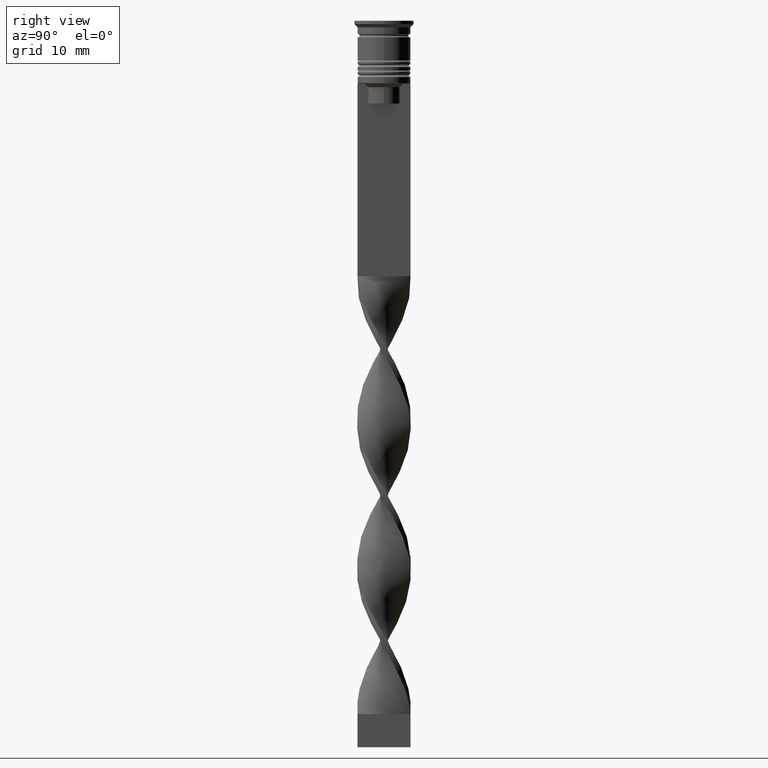
[diagram: clean part render]
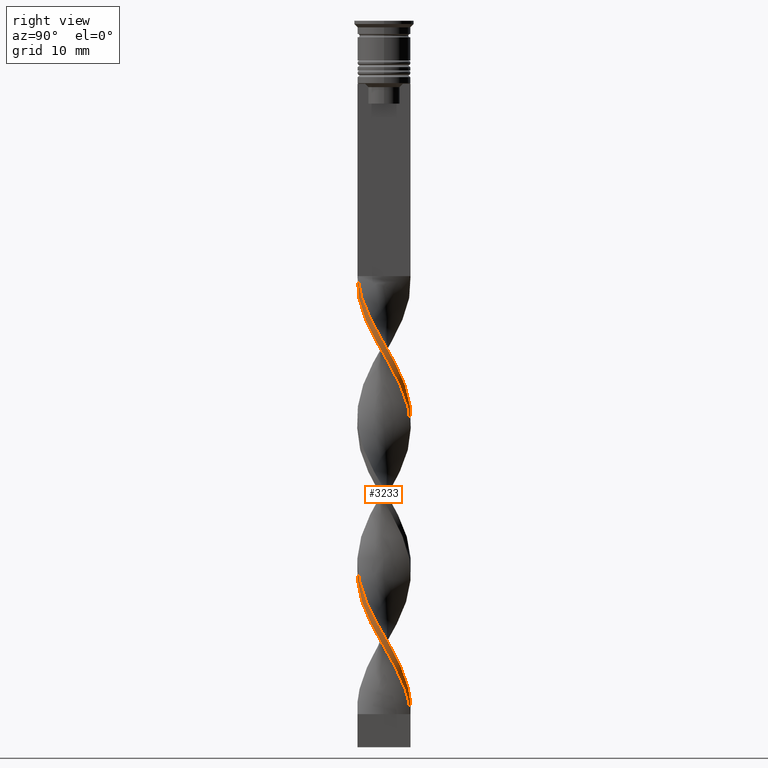
[diagram: same view with one face highlighted and labeled with its STEP entity id]
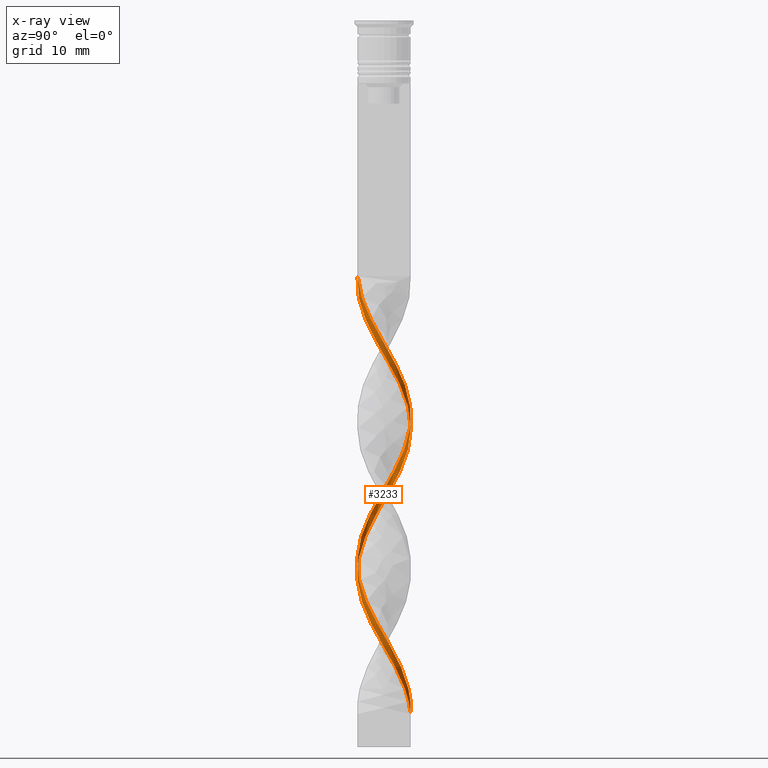
[diagram: x-ray of the same camera — body ghosted, the highlighted face saturated]
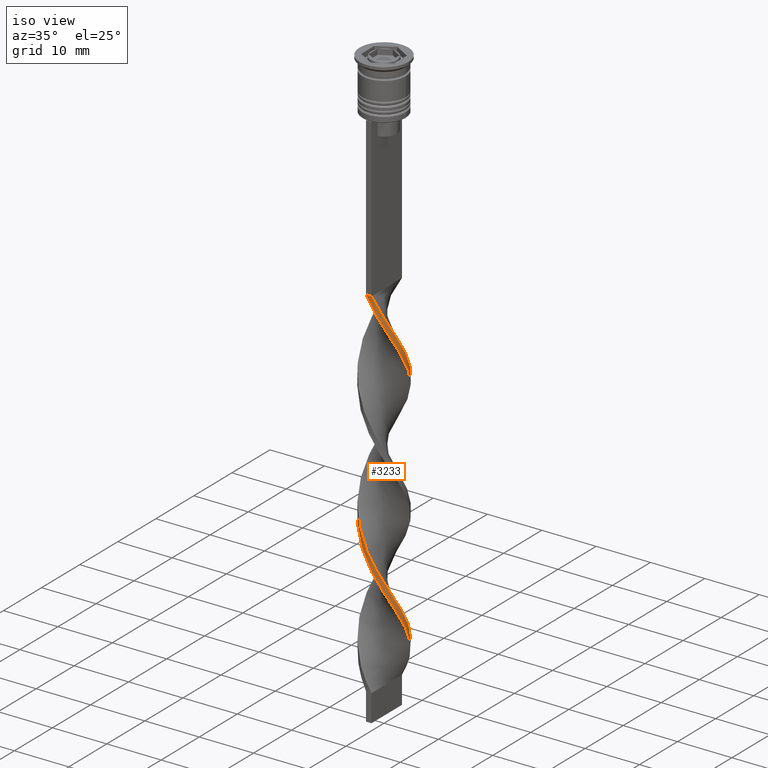
[diagram: same view with one face highlighted and labeled with its STEP entity id]
A machine part, right view. The second image highlights one B-rep face of the part: STEP entity #3233.
The next image is the same camera in x-ray: the body ghosted, the highlighted face saturated — about 0% of this face is hidden behind the body in this view.
A second angle (iso view) of the same face is appended — the face is thin or edge-on in the first view.
In plain terms, the highlighted face is a freeform B-spline surface patch.
Its self-contained STEP definition (entity closure, byte-faithful):
#4 = CARTESIAN_POINT ( 'NONE',  ( -0.9856879328890412184, 3.939289008388869640, -61.34615384615383249 ) ) ;
#8 = CARTESIAN_POINT ( 'NONE',  ( 3.333769449374405447, 2.318525361317902433, -52.88461538461537970 ) ) ;
#14 = CARTESIAN_POINT ( 'NONE',  ( -1.874433786711570127, 3.602232165184604540, -64.73076923076922640 ) ) ;
#22 = CARTESIAN_POINT ( 'NONE',  ( 1.899779198837471705, -3.588929866731989549, -85.03846153846153300 ) ) ;
#26 = CARTESIAN_POINT ( 'NONE',  ( 4.031103836519878136, 0.01420771602773408804, -48.65384615384615330 ) ) ;
#31 = CARTESIAN_POINT ( 'NONE',  ( 1.899779198837473038, 3.588929866731988660, -57.96153846153846700 ) ) ;
#45 = CARTESIAN_POINT ( 'NONE',  ( -3.007903090209048891, -2.683750919871450868, -75.73076923076924061 ) ) ;
#50 = CARTESIAN_POINT ( 'NONE',  ( 0.5000000000000000000, -4.000000000000000000, -82.50000000000000000 ) ) ;
#72 = CARTESIAN_POINT ( 'NONE',  ( 0.01431206711095556715, -4.060710991611130360, -81.65384615384616041 ) ) ;
#90 = CARTESIAN_POINT ( 'NONE',  ( 0.4717917484372050052, -4.003425101847986944, -40.19230769230769340 ) ) ;
#114 = CARTESIAN_POINT ( 'NONE',  ( 0.01431206711095876771, 4.060710991611130360, -61.34615384615383959 ) ) ;
#115 = ORIENTED_EDGE ( 'NONE', *, *, #3359, .F. ) ;
#133 = CARTESIAN_POINT ( 'NONE',  ( 0.9856879328890439940, 3.939289008388870084, -59.65384615384615330 ) ) ;
#139 = LINE ( 'NONE', #3141, #1529 ) ;
#141 = EDGE_LOOP ( 'NONE', ( #2055, #3278, #432, #115 ) ) ;
#149 = CARTESIAN_POINT ( 'NONE',  ( -2.301620701001681368, -3.309462516590953474, -79.11538461538461320 ) ) ;
#155 = CARTESIAN_POINT ( 'NONE',  ( -0.5000000000000000000, -4.000000000000000000, -38.50000000000000000 ) ) ;
#156 = CARTESIAN_POINT ( 'NONE',  ( -0.01431206711095789862, -4.060710991611130360, -39.34615384615384670 ) ) ;
#168 = CARTESIAN_POINT ( 'NONE',  ( -4.032828965577023972, -0.4752569063773701696, -73.19230769230770761 ) ) ;
#178 = CARTESIAN_POINT ( 'NONE',  ( 4.032828965577023084, 0.4752569063773717239, -51.19230769230768630 ) ) ;
#185 = CARTESIAN_POINT ( 'NONE',  ( 1.442733565863258516, 3.764109437560428262, -102.8076923076923208 ) ) ;
#213 = CARTESIAN_POINT ( 'NONE',  ( 3.562762527220391107, -1.885927669512850402, -90.96153846153845279 ) ) ;
#243 = CARTESIAN_POINT ( 'NONE',  ( -0.9856879328890445491, -3.939289008388869640, -81.65384615384616041 ) ) ;
#264 = CARTESIAN_POINT ( 'NONE',  ( -3.910567156264555422, -0.9785011580703162348, -72.34615384615383959 ) ) ;
#270 = CARTESIAN_POINT ( 'NONE',  ( -0.9578955639853692361, -3.946139212084844416, -79.96153846153846700 ) ) ;
#276 = CARTESIAN_POINT ( 'NONE',  ( 2.301620701001679148, 3.309462516590954806, -101.1153846153846132 ) ) ;
#284 = CARTESIAN_POINT ( 'NONE',  ( 3.333769449374405447, 2.318525361317902878, -52.88461538461538680 ) ) ;
#287 = CARTESIAN_POINT ( 'NONE',  ( 3.575967836940203703, -1.860767053977795404, -89.26923076923077360 ) ) ;
#292 = CARTESIAN_POINT ( 'NONE',  ( -2.301620701001681368, -3.309462516590953474, -79.11538461538461320 ) ) ;
#298 = CARTESIAN_POINT ( 'NONE',  ( 0.5000000000000000000, -4.000000000000000000, -82.50000000000000000 ) ) ;
#302 = CARTESIAN_POINT ( 'NONE',  ( -1.416164675348472235, -3.774185688634722702, -79.11538461538461320 ) ) ;
#307 = CARTESIAN_POINT ( 'NONE',  ( 3.917367414262927561, 0.9509114268274344584, -96.03846153846154721 ) ) ;
#315 = CARTESIAN_POINT ( 'NONE',  ( -1.442733565863255851, 3.764109437560429594, -62.19230769230769340 ) ) ;
#318 = CARTESIAN_POINT ( 'NONE',  ( 4.029378707462731413, 0.5036723384328412045, -49.50000000000000000 ) ) ;
#344 = CARTESIAN_POINT ( 'NONE',  ( 3.917367414262926673, -0.9509114268274357906, -46.96153846153845990 ) ) ;
#357 = CARTESIAN_POINT ( 'NONE',  ( 2.278235258877631342, 3.325604321804801256, -99.42307692307691980 ) ) ;
#362 = CARTESIAN_POINT ( 'NONE',  ( -3.026746007048732423, -2.662481663564005174, -77.42307692307693401 ) ) ;
#374 = CARTESIAN_POINT ( 'NONE',  ( 3.917367414262926673, -0.9509114268274357906, -90.96153846153845279 ) ) ;
#380 = CARTESIAN_POINT ( 'NONE',  ( 2.703462203165886368, 3.029995166449921840, -56.26923076923076650 ) ) ;
#402 = CARTESIAN_POINT ( 'NONE',  ( 1.899779198837473038, 3.588929866731988216, -57.96153846153846700 ) ) ;
#418 = CARTESIAN_POINT ( 'NONE',  ( -3.007903090209047559, 2.683750919871451757, -67.26923076923077360 ) ) ;
#432 = ORIENTED_EDGE ( 'NONE', *, *, #1738, .F. ) ;
#433 = CARTESIAN_POINT ( 'NONE',  ( -3.791755605066377655, 1.453329977707796816, -69.80769230769230660 ) ) ;
#442 = CARTESIAN_POINT ( 'NONE',  ( 3.910567156264554534, -0.9785011580703200096, -48.65384615384615330 ) ) ;
#478 = CARTESIAN_POINT ( 'NONE',  ( 3.575967836940204148, 1.860767053977794516, -53.73076923076923350 ) ) ;
#483 = CARTESIAN_POINT ( 'NONE',  ( -0.4999999999999994449, 4.000000000000000000, -104.5000000000000142 ) ) ;
#489 = CARTESIAN_POINT ( 'NONE',  ( 3.917367414262927561, 0.9509114268274344584, -52.03846153846154010 ) ) ;
#501 = CARTESIAN_POINT ( 'NONE',  ( 1.899779198837471705, -3.588929866731989105, -41.03846153846154010 ) ) ;
#510 = CARTESIAN_POINT ( 'NONE',  ( 3.801905862948830261, 1.426565947277498081, -96.88461538461538680 ) ) ;
#517 = CARTESIAN_POINT ( 'NONE',  ( 3.007903090209047559, -2.683750919871451757, -89.26923076923077360 ) ) ;
#528 = CARTESIAN_POINT ( 'NONE',  ( 0.9856879328890441050, 3.939289008388869640, -59.65384615384615330 ) ) ;
#533 = CARTESIAN_POINT ( 'NONE',  ( 3.791755605066377655, 1.453329977707796816, -51.19230769230768630 ) ) ;
#537 = CARTESIAN_POINT ( 'NONE',  ( -3.562762527220391551, -1.885927669512849514, -74.03846153846153300 ) ) ;
#541 = CARTESIAN_POINT ( 'NONE',  ( -0.01431206711095789862, -4.060710991611130360, -83.34615384615386802 ) ) ;
#547 = VERTEX_POINT ( 'NONE', #483 ) ;
#549 = CARTESIAN_POINT ( 'NONE',  ( -0.9578955639853693471, -3.946139212084843972, -79.96153846153846700 ) ) ;
#555 =( BOUNDED_CURVE ( )  B_SPLINE_CURVE ( 2, ( #2032, #3076, #3387, #1972, #1092, #2876, #1376, #1692, #573, #1714, #2546, #818, #3642, #609, #2013, #533, #2505, #284, #2232, #3352, #892, #2855, #851, #1415, #3092, #3369, #1433, #4, #315, #3621, #1131, #1452, #2819, #1954, #2580, #2250, #1147, #1676, #1393, #3148, #264, #2801, #2527, #1992, #45, #1113, #3129, #1729, #832, #549, #3111, #2837, #298, #2562, #874, #22, #2285, #3407, #591, #1173, #2309, #3429, #374, #940, #2327, #3493, #2383, #959, #2961, #2078, #3524, #1514, #357, #3191, #1845, #2939, #3510, #1477, #980 ),
 .UNSPECIFIED., .F., .T. ) 
 B_SPLINE_CURVE_WITH_KNOTS ( ( 3, 2, 2, 2, 2, 2, 2, 2, 2, 2, 2, 2, 2, 2, 2, 2, 2, 2, 2, 2, 2, 2, 2, 2, 2, 2, 2, 2, 2, 2, 2, 2, 2, 2, 2, 2, 2, 2, 2, 3 ),
 ( 0.000000000000000000, 0.01923076923076923184, 0.03846153846153846367, 0.05769230769230768857, 0.07692307692307692735, 0.09615384615384615918, 0.1153846153846153771, 0.1346153846153846090, 0.1538461538461538547, 0.1730769230769230449, 0.1923076923076923184, 0.2115384615384615363, 0.2307692307692307543, 0.2500000000000000000, 0.2692307692307692180, 0.2884615384615384359, 0.3076923076923077094, 0.3269230769230769273, 0.3461538461538460898, 0.3653846153846153633, 0.3846153846153846367, 0.4038461538461539102, 0.4230769230769230727, 0.4423076923076922906, 0.4615384615384615086, 0.4807692307692307820, 0.5000000000000000000, 0.5192307692307692735, 0.5384615384615384359, 0.5576923076923077094, 0.5769230769230768718, 0.5961538461538461453, 0.6153846153846154188, 0.6346153846153845812, 0.6538461538461538547, 0.6730769230769230171, 0.6923076923076921796, 0.7115384615384615641, 0.7307692307692307265, 0.7500000000000000000 ),
 .UNSPECIFIED. ) 
 CURVE ( )  GEOMETRIC_REPRESENTATION_ITEM ( )  RATIONAL_B_SPLINE_CURVE ( ( 1.000000000000000000, 0.9927088740980539727, 1.000000000000000000, 0.9927088740980539727, 1.000000000000000000, 0.9927088740980539727, 1.000000000000000000, 0.9927088740980539727, 1.000000000000000000, 0.9927088740980539727, 1.000000000000000000, 0.9927088740980539727, 1.000000000000000000, 0.9927088740980539727, 1.000000000000000000, 0.9927088740980539727, 1.000000000000000000, 0.9927088740980539727, 1.000000000000000000, 0.9927088740980539727, 1.000000000000000000, 0.9927088740980539727, 1.000000000000000000, 0.9927088740980539727, 1.000000000000000000, 0.9927088740980539727, 1.000000000000000000, 0.9927088740980539727, 1.000000000000000000, 0.9927088740980539727, 1.000000000000000000, 0.9927088740980539727, 1.000000000000000000, 0.9927088740980539727, 1.000000000000000000, 0.9927088740980539727, 1.000000000000000000, 0.9927088740980539727, 1.000000000000000000, 0.9927088740980539727, 1.000000000000000000, 0.9927088740980539727, 1.000000000000000000, 0.9927088740980539727, 1.000000000000000000, 0.9927088740980539727, 1.000000000000000000, 0.9927088740980539727, 1.000000000000000000, 0.9927088740980539727, 1.000000000000000000, 0.9927088740980539727, 1.000000000000000000, 0.9927088740980539727, 1.000000000000000000, 0.9927088740980539727, 1.000000000000000000, 0.9927088740980539727, 1.000000000000000000, 0.9927088740980539727, 1.000000000000000000, 0.9927088740980539727, 1.000000000000000000, 0.9927088740980539727, 1.000000000000000000, 0.9927088740980539727, 1.000000000000000000, 0.9927088740980539727, 1.000000000000000000, 0.9927088740980539727, 1.000000000000000000, 0.9927088740980539727, 1.000000000000000000, 0.9927088740980539727, 1.000000000000000000, 0.9927088740980539727, 1.000000000000000000, 0.9927088740980539727, 1.000000000000000000 ) ) 
 REPRESENTATION_ITEM ( '' )  );
#557 = CARTESIAN_POINT ( 'NONE',  ( 3.910567156264554534, 0.9785011580703186773, -50.34615384615384670 ) ) ;
#563 = CARTESIAN_POINT ( 'NONE',  ( -4.031103836519877248, 0.01420771602773772055, -72.34615384615383959 ) ) ;
#573 = CARTESIAN_POINT ( 'NONE',  ( 3.575967836940203703, -1.860767053977795404, -45.26923076923076650 ) ) ;
#579 = CARTESIAN_POINT ( 'NONE',  ( 2.278235258877631342, 3.325604321804801256, -55.42307692307691980 ) ) ;
#583 = CARTESIAN_POINT ( 'NONE',  ( 3.007903090209047559, -2.683750919871451757, -89.26923076923077360 ) ) ;
#591 = CARTESIAN_POINT ( 'NONE',  ( 3.026746007048731091, -2.662481663564006951, -87.57692307692308020 ) ) ;
#596 = CARTESIAN_POINT ( 'NONE',  ( 0.4717917484372064485, 4.003425101847986056, -58.80769230769231370 ) ) ;
#609 = CARTESIAN_POINT ( 'NONE',  ( 4.029378707462731413, 0.5036723384328412045, -49.50000000000000000 ) ) ;
#614 = CARTESIAN_POINT ( 'NONE',  ( 3.562762527220391551, 1.885927669512849070, -96.03846153846154721 ) ) ;
#640 = CARTESIAN_POINT ( 'NONE',  ( -3.575967836940204148, -1.860767053977794072, -75.73076923076924061 ) ) ;
#663 = CARTESIAN_POINT ( 'NONE',  ( -0.01431206711095789688, -4.060710991611130360, -83.34615384615386802 ) ) ;
#682 = CARTESIAN_POINT ( 'NONE',  ( -0.9578955639853662385, 3.946139212084844416, -63.03846153846153300 ) ) ;
#700 = CARTESIAN_POINT ( 'NONE',  ( 2.682036731043689670, -3.048976478425000636, -44.42307692307691980 ) ) ;
#716 = CARTESIAN_POINT ( 'NONE',  ( 3.910567156264554534, -0.9785011580703200096, -48.65384615384615330 ) ) ;
#725 = CARTESIAN_POINT ( 'NONE',  ( 3.333769449374404559, -2.318525361317903322, -46.11538461538462030 ) ) ;
#755 = CARTESIAN_POINT ( 'NONE',  ( 2.682036731043690114, -3.048976478425000636, -44.42307692307692690 ) ) ;
#776 = CARTESIAN_POINT ( 'NONE',  ( 3.350029810931577590, 2.294968160678091618, -98.57692307692310862 ) ) ;
#787 = CARTESIAN_POINT ( 'NONE',  ( 4.032828965577023084, 0.4752569063773717239, -95.19230769230769340 ) ) ;
#794 = CARTESIAN_POINT ( 'NONE',  ( 0.5000000000000005551, 4.000000000000000000, -104.5000000000000142 ) ) ;
#812 = CARTESIAN_POINT ( 'NONE',  ( 3.562762527220391107, -1.885927669512850402, -90.96153846153845279 ) ) ;
#815 = CARTESIAN_POINT ( 'NONE',  ( 0.5000000000000005551, 4.000000000000000000, -104.5000000000000142 ) ) ;
#818 = CARTESIAN_POINT ( 'NONE',  ( 4.032828965577023972, -0.4752569063773721680, -47.80769230769230660 ) ) ;
#821 = CARTESIAN_POINT ( 'NONE',  ( 1.442733565863256961, -3.764109437560429150, -84.19230769230769340 ) ) ;
#826 = CARTESIAN_POINT ( 'NONE',  ( 1.416164675348469126, -3.774185688634723590, -85.88461538461538680 ) ) ;
#832 = CARTESIAN_POINT ( 'NONE',  ( -1.416164675348472235, -3.774185688634722702, -79.11538461538461320 ) ) ;
#837 = CARTESIAN_POINT ( 'NONE',  ( -0.4999999999999994449, 4.000000000000000000, -60.50000000000000000 ) ) ;
#851 = CARTESIAN_POINT ( 'NONE',  ( 1.416164675348469792, 3.774185688634723146, -57.11538461538461320 ) ) ;
#857 = CARTESIAN_POINT ( 'NONE',  ( 0.9578955639853687920, 3.946139212084844416, -57.96153846153846700 ) ) ;
#864 = CARTESIAN_POINT ( 'NONE',  ( 1.442733565863258516, 3.764109437560428262, -58.80769230769231370 ) ) ;
#874 = CARTESIAN_POINT ( 'NONE',  ( 1.442733565863256961, -3.764109437560429150, -84.19230769230769340 ) ) ;
#881 = CARTESIAN_POINT ( 'NONE',  ( -1.874433786711571459, -3.602232165184603652, -78.26923076923075939 ) ) ;
#892 = CARTESIAN_POINT ( 'NONE',  ( 2.278235258877631342, 3.325604321804801256, -55.42307692307691980 ) ) ;
#898 = CARTESIAN_POINT ( 'NONE',  ( 3.791755605066377655, 1.453329977707796816, -95.19230769230769340 ) ) ;
#919 = CARTESIAN_POINT ( 'NONE',  ( -3.333769449374404559, 2.318525361317904654, -68.11538461538462741 ) ) ;
#927 = CARTESIAN_POINT ( 'NONE',  ( -0.4999999999999994449, 4.000000000000000000, -104.5000000000000142 ) ) ;
#940 = CARTESIAN_POINT ( 'NONE',  ( 4.032828965577023972, -0.4752569063773721680, -91.80769230769230660 ) ) ;
#945 = CARTESIAN_POINT ( 'NONE',  ( -3.350029810931578478, -2.294968160678088953, -76.57692307692306599 ) ) ;
#959 = CARTESIAN_POINT ( 'NONE',  ( 3.791755605066377655, 1.453329977707796816, -95.19230769230769340 ) ) ;
#966 = CARTESIAN_POINT ( 'NONE',  ( 4.032828965577023084, 0.4752569063773717239, -51.19230769230768630 ) ) ;
#980 = CARTESIAN_POINT ( 'NONE',  ( -0.4999999999999994449, 4.000000000000000000, -104.5000000000000142 ) ) ;
#983 = CARTESIAN_POINT ( 'NONE',  ( -3.917367414262927561, -0.9509114268274349024, -74.03846153846153300 ) ) ;
#1001 = CARTESIAN_POINT ( 'NONE',  ( -0.5000000000000000000, -4.000000000000000000, -82.50000000000000000 ) ) ;
#1011 = CARTESIAN_POINT ( 'NONE',  ( 3.007903090209047559, -2.683750919871451757, -45.26923076923076650 ) ) ;
#1052 = CARTESIAN_POINT ( 'NONE',  ( 3.026746007048731091, -2.662481663564006951, -43.57692307692307310 ) ) ;
#1088 = CARTESIAN_POINT ( 'NONE',  ( 3.350029810931577590, 2.294968160678091174, -98.57692307692310862 ) ) ;
#1092 = CARTESIAN_POINT ( 'NONE',  ( 2.301620701001678704, -3.309462516590955250, -41.88461538461537970 ) ) ;
#1107 = CARTESIAN_POINT ( 'NONE',  ( -0.5000000000000000000, -4.000000000000000000, -82.50000000000000000 ) ) ;
#1113 = CARTESIAN_POINT ( 'NONE',  ( -2.682036731043692779, -3.048976478424997527, -76.57692307692306599 ) ) ;
#1119 = CARTESIAN_POINT ( 'NONE',  ( -4.032828965577023084, 0.4752569063773718350, -69.80769230769230660 ) ) ;
#1125 = CARTESIAN_POINT ( 'NONE',  ( 3.026746007048731979, 2.662481663564005618, -99.42307692307691980 ) ) ;
#1131 = CARTESIAN_POINT ( 'NONE',  ( -2.301620701001678704, 3.309462516590955250, -63.88461538461538680 ) ) ;
#1134 = CARTESIAN_POINT ( 'NONE',  ( -1.899779198837470373, 3.588929866731989549, -63.03846153846153300 ) ) ;
#1139 = CARTESIAN_POINT ( 'NONE',  ( 0.9578955639853675708, -3.946139212084843972, -85.03846153846153300 ) ) ;
#1147 = CARTESIAN_POINT ( 'NONE',  ( -3.917367414262926673, 0.9509114268274362347, -68.96153846153846700 ) ) ;
#1154 = CARTESIAN_POINT ( 'NONE',  ( -2.278235258877631786, -3.325604321804800811, -77.42307692307693401 ) ) ;
#1161 = CARTESIAN_POINT ( 'NONE',  ( -4.032828965577023972, -0.4752569063773701696, -73.19230769230769340 ) ) ;
#1162 = VERTEX_POINT ( 'NONE', #815 ) ;
#1173 = CARTESIAN_POINT ( 'NONE',  ( 3.350029810931576701, -2.294968160678092506, -88.42307692307691980 ) ) ;
#1178 = CARTESIAN_POINT ( 'NONE',  ( 3.350029810931576701, -2.294968160678092506, -88.42307692307693401 ) ) ;
#1196 = CARTESIAN_POINT ( 'NONE',  ( -3.333769449374406335, -2.318525361317901101, -74.88461538461538680 ) ) ;
#1215 = CARTESIAN_POINT ( 'NONE',  ( -2.703462203165886812, -3.029995166449921840, -78.26923076923075939 ) ) ;
#1239 = CARTESIAN_POINT ( 'NONE',  ( -1.874433786711570127, 3.602232165184604540, -64.73076923076921219 ) ) ;
#1256 = CARTESIAN_POINT ( 'NONE',  ( -4.031103836519877248, 0.01420771602773772055, -72.34615384615383959 ) ) ;
#1274 = CARTESIAN_POINT ( 'NONE',  ( -0.9856879328890444381, -3.939289008388870084, -81.65384615384616041 ) ) ;
#1295 = CARTESIAN_POINT ( 'NONE',  ( 3.562762527220391107, -1.885927669512850402, -46.96153846153845990 ) ) ;
#1326 = FACE_OUTER_BOUND ( 'NONE', #141, .T. ) ;
#1369 = CARTESIAN_POINT ( 'NONE',  ( 0.01431206711095876771, 4.060710991611130360, -61.34615384615383249 ) ) ;
#1376 = CARTESIAN_POINT ( 'NONE',  ( 3.026746007048731091, -2.662481663564006951, -43.57692307692307310 ) ) ;
#1382 = CARTESIAN_POINT ( 'NONE',  ( 2.301620701001678704, -3.309462516590955250, -41.88461538461537970 ) ) ;
#1387 = CARTESIAN_POINT ( 'NONE',  ( -4.029378707462731413, 0.5036723384328422037, -71.50000000000001421 ) ) ;
#1393 = CARTESIAN_POINT ( 'NONE',  ( -4.031103836519878136, -0.01420771602773273322, -70.65384615384614619 ) ) ;
#1402 = CARTESIAN_POINT ( 'NONE',  ( 2.703462203165886368, -3.029995166449922284, -86.73076923076922640 ) ) ;
#1415 = CARTESIAN_POINT ( 'NONE',  ( 0.9578955639853689030, 3.946139212084843972, -57.96153846153846700 ) ) ;
#1420 = CARTESIAN_POINT ( 'NONE',  ( -3.791755605066378987, -1.453329977707795484, -73.19230769230770761 ) ) ;
#1425 = CARTESIAN_POINT ( 'NONE',  ( 0.4717917484372050052, -4.003425101847986944, -84.19230769230769340 ) ) ;
#1433 = CARTESIAN_POINT ( 'NONE',  ( -0.4999999999999994449, 4.000000000000000000, -60.50000000000000000 ) ) ;
#1437 = CARTESIAN_POINT ( 'NONE',  ( 1.899779198837471705, -3.588929866731989105, -85.03846153846153300 ) ) ;
#1443 = CARTESIAN_POINT ( 'NONE',  ( -0.9578955639853662385, 3.946139212084843972, -63.03846153846154010 ) ) ;
#1452 = CARTESIAN_POINT ( 'NONE',  ( -2.703462203165885924, 3.029995166449922728, -64.73076923076922640 ) ) ;
#1459 = CARTESIAN_POINT ( 'NONE',  ( -0.9856879328890411074, 3.939289008388870084, -61.34615384615383959 ) ) ;
#1477 = CARTESIAN_POINT ( 'NONE',  ( -0.01431206711095605461, 4.060710991611130360, -103.6538461538461462 ) ) ;
#1480 = CARTESIAN_POINT ( 'NONE',  ( -4.031103836519878136, -0.01420771602773273322, -70.65384615384614619 ) ) ;
#1486 = CARTESIAN_POINT ( 'NONE',  ( -0.1666666666666661578, 4.000000000000000000, -104.5000000000000142 ) ) ;
#1500 = CARTESIAN_POINT ( 'NONE',  ( 1.874433786711570571, -3.602232165184604096, -42.73076923076923350 ) ) ;
#1514 = CARTESIAN_POINT ( 'NONE',  ( 2.682036731043691002, 3.048976478424999303, -98.57692307692310862 ) ) ;
#1520 = CARTESIAN_POINT ( 'NONE',  ( 2.278235258877630010, -3.325604321804802588, -43.57692307692307310 ) ) ;
#1529 = VECTOR ( 'NONE', #2955, 1000.000000000000000 ) ;
#1530 = CARTESIAN_POINT ( 'NONE',  ( 0.5000000000000000000, -4.000000000000000000, -38.50000000000000000 ) ) ;
#1548 = CARTESIAN_POINT ( 'NONE',  ( 1.416164675348469792, 3.774185688634723146, -101.1153846153846132 ) ) ;
#1561 = CARTESIAN_POINT ( 'NONE',  ( -3.562762527220391107, 1.885927669512850846, -68.96153846153846700 ) ) ;
#1569 = EDGE_CURVE ( 'NONE', #2561, #1162, #2981, .T. ) ;
#1570 = CARTESIAN_POINT ( 'NONE',  ( 0.9578955639853675708, -3.946139212084843972, -41.03846153846154010 ) ) ;
#1574 = CARTESIAN_POINT ( 'NONE',  ( -0.01431206711095605461, 4.060710991611130360, -103.6538461538461604 ) ) ;
#1582 = CARTESIAN_POINT ( 'NONE',  ( 4.031103836519878136, -0.01420771602773549663, -50.34615384615384670 ) ) ;
#1594 = CARTESIAN_POINT ( 'NONE',  ( 3.910567156264554534, -0.9785011580703200096, -92.65384615384616041 ) ) ;
#1630 = CARTESIAN_POINT ( 'NONE',  ( 3.350029810931577590, 2.294968160678091174, -54.57692307692308731 ) ) ;
#1651 = CARTESIAN_POINT ( 'NONE',  ( -1.442733565863260736, -3.764109437560427818, -80.80769230769230660 ) ) ;
#1652 = EDGE_CURVE ( 'NONE', #1787, #2561, #139, .T. ) ;
#1659 = CARTESIAN_POINT ( 'NONE',  ( 4.032828965577023084, 0.4752569063773717239, -95.19230769230769340 ) ) ;
#1669 = CARTESIAN_POINT ( 'NONE',  ( 0.9856879328890441050, 3.939289008388869640, -103.6538461538461462 ) ) ;
#1676 = CARTESIAN_POINT ( 'NONE',  ( -4.032828965577023084, 0.4752569063773718350, -69.80769230769230660 ) ) ;
#1681 = CARTESIAN_POINT ( 'NONE',  ( 3.007903090209048003, 2.683750919871450868, -53.73076923076923350 ) ) ;
#1685 = CARTESIAN_POINT ( 'NONE',  ( -3.007903090209047559, 2.683750919871451757, -67.26923076923077360 ) ) ;
#1692 = CARTESIAN_POINT ( 'NONE',  ( 3.350029810931576701, -2.294968160678092506, -44.42307692307692690 ) ) ;
#1700 = CARTESIAN_POINT ( 'NONE',  ( -0.4717917484372087800, -4.003425101847986056, -80.80769230769230660 ) ) ;
#1705 = CARTESIAN_POINT ( 'NONE',  ( -2.703462203165886812, -3.029995166449921840, -78.26923076923077360 ) ) ;
#1714 = CARTESIAN_POINT ( 'NONE',  ( 3.801905862948830706, -1.426565947277498525, -46.11538461538462030 ) ) ;
#1718 = CARTESIAN_POINT ( 'NONE',  ( -3.350029810931575813, 2.294968160678093394, -66.42307692307694822 ) ) ;
#1723 = CARTESIAN_POINT ( 'NONE',  ( 4.031103836519878136, -0.01420771602773549663, -94.34615384615385381 ) ) ;
#1729 = CARTESIAN_POINT ( 'NONE',  ( -1.874433786711571237, -3.602232165184603652, -78.26923076923077360 ) ) ;
#1735 = CARTESIAN_POINT ( 'NONE',  ( 4.029378707462731413, 0.5036723384328412045, -93.49999999999998579 ) ) ;
#1738 = EDGE_CURVE ( 'NONE', #547, #1162, #2817, .T. ) ;
#1755 = CARTESIAN_POINT ( 'NONE',  ( 3.007903090209048003, 2.683750919871450868, -97.73076923076922640 ) ) ;
#1777 = CARTESIAN_POINT ( 'NONE',  ( 3.917367414262927561, 0.9509114268274344584, -52.03846153846154010 ) ) ;
#1787 = VERTEX_POINT ( 'NONE', #1530 ) ;
#1795 = CARTESIAN_POINT ( 'NONE',  ( 0.9578955639853675708, -3.946139212084844416, -85.03846153846153300 ) ) ;
#1812 = CARTESIAN_POINT ( 'NONE',  ( 0.4717917484372064485, 4.003425101847986056, -102.8076923076923208 ) ) ;
#1835 = CARTESIAN_POINT ( 'NONE',  ( 0.9578955639853687920, 3.946139212084844416, -101.9615384615384670 ) ) ;
#1845 = CARTESIAN_POINT ( 'NONE',  ( 1.416164675348469792, 3.774185688634723146, -101.1153846153846132 ) ) ;
#1848 = CARTESIAN_POINT ( 'NONE',  ( -3.910567156264554534, 0.9785011580703212308, -70.65384615384614619 ) ) ;
#1857 = CARTESIAN_POINT ( 'NONE',  ( 3.562762527220391107, -1.885927669512850402, -46.96153846153845990 ) ) ;
#1866 = CARTESIAN_POINT ( 'NONE',  ( 3.917367414262927561, 0.9509114268274344584, -96.03846153846154721 ) ) ;
#1884 = CARTESIAN_POINT ( 'NONE',  ( 1.874433786711570571, -3.602232165184604096, -86.73076923076922640 ) ) ;
#1899 = CARTESIAN_POINT ( 'NONE',  ( 2.682036731043689670, -3.048976478425000636, -88.42307692307693401 ) ) ;
#1904 = CARTESIAN_POINT ( 'NONE',  ( 4.029378707462731413, -0.5036723384328416486, -49.50000000000000000 ) ) ;
#1924 = CARTESIAN_POINT ( 'NONE',  ( -3.562762527220391107, 1.885927669512850846, -68.96153846153846700 ) ) ;
#1935 = CARTESIAN_POINT ( 'NONE',  ( 4.029378707462731413, -0.5036723384328416486, -93.49999999999998579 ) ) ;
#1941 = CARTESIAN_POINT ( 'NONE',  ( 0.5000000000000000000, -4.000000000000000000, -38.50000000000000000 ) ) ;
#1948 = CARTESIAN_POINT ( 'NONE',  ( 2.703462203165886368, 3.029995166449921840, -100.2692307692307878 ) ) ;
#1954 = CARTESIAN_POINT ( 'NONE',  ( -3.350029810931575813, 2.294968160678093394, -66.42307692307693401 ) ) ;
#1960 = CARTESIAN_POINT ( 'NONE',  ( -2.301620701001678704, 3.309462516590955250, -63.88461538461538680 ) ) ;
#1965 = CARTESIAN_POINT ( 'NONE',  ( 3.333769449374404559, -2.318525361317903322, -90.11538461538462741 ) ) ;
#1972 = CARTESIAN_POINT ( 'NONE',  ( 1.899779198837471705, -3.588929866731989549, -41.03846153846154010 ) ) ;
#1977 = CARTESIAN_POINT ( 'NONE',  ( 2.682036731043690558, 3.048976478424999303, -54.57692307692308731 ) ) ;
#1992 = CARTESIAN_POINT ( 'NONE',  ( -3.333769449374406335, -2.318525361317901101, -74.88461538461538680 ) ) ;
#1998 = CARTESIAN_POINT ( 'NONE',  ( 4.032828965577023972, -0.4752569063773721680, -47.80769230769230660 ) ) ;
#2003 = CARTESIAN_POINT ( 'NONE',  ( 3.026746007048731979, 2.662481663564005618, -55.42307692307691980 ) ) ;
#2013 = CARTESIAN_POINT ( 'NONE',  ( 3.910567156264554534, 0.9785011580703186773, -50.34615384615384670 ) ) ;
#2020 = CARTESIAN_POINT ( 'NONE',  ( 3.791755605066377655, 1.453329977707796816, -51.19230769230768630 ) ) ;
#2032 = CARTESIAN_POINT ( 'NONE',  ( 0.5000000000000000000, -4.000000000000000000, -38.50000000000000000 ) ) ;
#2038 = CARTESIAN_POINT ( 'NONE',  ( 3.333769449374405447, 2.318525361317902433, -96.88461538461538680 ) ) ;
#2055 = ORIENTED_EDGE ( 'NONE', *, *, #1652, .T. ) ;
#2057 = CARTESIAN_POINT ( 'NONE',  ( 0.9578955639853675708, -3.946139212084844416, -41.03846153846154010 ) ) ;
#2078 = CARTESIAN_POINT ( 'NONE',  ( 3.333769449374405447, 2.318525361317902878, -96.88461538461538680 ) ) ;
#2081 = CARTESIAN_POINT ( 'NONE',  ( -1.899779198837473482, -3.588929866731988216, -79.96153846153846700 ) ) ;
#2086 = CARTESIAN_POINT ( 'NONE',  ( 0.5000000000000005551, 4.000000000000000000, -104.5000000000000142 ) ) ;
#2100 = CARTESIAN_POINT ( 'NONE',  ( 3.350029810931577590, 2.294968160678091618, -54.57692307692308731 ) ) ;
#2117 = CARTESIAN_POINT ( 'NONE',  ( 1.874433786711571015, 3.602232165184603652, -100.2692307692307878 ) ) ;
#2135 = CARTESIAN_POINT ( 'NONE',  ( 0.4717917484372050052, -4.003425101847986944, -84.19230769230769340 ) ) ;
#2149 = CARTESIAN_POINT ( 'NONE',  ( 3.801905862948830261, 1.426565947277498081, -96.88461538461538680 ) ) ;
#2173 = CARTESIAN_POINT ( 'NONE',  ( -0.5000000000000000000, -4.000000000000000000, -38.50000000000000000 ) ) ;
#2186 = CARTESIAN_POINT ( 'NONE',  ( 3.350029810931576701, -2.294968160678092506, -44.42307692307691980 ) ) ;
#2189 = CARTESIAN_POINT ( 'NONE',  ( 1.416164675348469126, -3.774185688634723590, -41.88461538461537970 ) ) ;
#2195 = CARTESIAN_POINT ( 'NONE',  ( 2.278235258877630010, -3.325604321804802588, -87.57692307692308020 ) ) ;
#2210 = CARTESIAN_POINT ( 'NONE',  ( 3.026746007048731979, 2.662481663564005618, -99.42307692307691980 ) ) ;
#2222 = CARTESIAN_POINT ( 'NONE',  ( -1.416164675348468904, 3.774185688634723590, -63.88461538461538680 ) ) ;
#2232 = CARTESIAN_POINT ( 'NONE',  ( 3.007903090209048003, 2.683750919871450868, -53.73076923076923350 ) ) ;
#2243 = CARTESIAN_POINT ( 'NONE',  ( -2.682036731043689226, 3.048976478425001524, -66.42307692307693401 ) ) ;
#2250 = CARTESIAN_POINT ( 'NONE',  ( -3.801905862948829373, 1.426565947277500745, -68.11538461538461320 ) ) ;
#2255 = CARTESIAN_POINT ( 'NONE',  ( -4.029378707462731413, -0.5036723384328406494, -71.50000000000000000 ) ) ;
#2260 = CARTESIAN_POINT ( 'NONE',  ( 4.029378707462731413, -0.5036723384328416486, -93.50000000000000000 ) ) ;
#2269 = CARTESIAN_POINT ( 'NONE',  ( -2.682036731043692335, -3.048976478424997527, -76.57692307692306599 ) ) ;
#2274 = CARTESIAN_POINT ( 'NONE',  ( 2.682036731043690114, -3.048976478425000636, -88.42307692307691980 ) ) ;
#2285 = CARTESIAN_POINT ( 'NONE',  ( 2.301620701001678704, -3.309462516590955250, -85.88461538461538680 ) ) ;
#2293 = CARTESIAN_POINT ( 'NONE',  ( 3.575967836940203703, -1.860767053977795404, -45.26923076923076650 ) ) ;
#2309 = CARTESIAN_POINT ( 'NONE',  ( 3.575967836940203703, -1.860767053977795404, -89.26923076923077360 ) ) ;
#2315 = CARTESIAN_POINT ( 'NONE',  ( 3.801905862948830706, -1.426565947277498525, -90.11538461538462741 ) ) ;
#2327 = CARTESIAN_POINT ( 'NONE',  ( 4.031103836519878136, 0.01420771602773408804, -92.65384615384616041 ) ) ;
#2330 = CARTESIAN_POINT ( 'NONE',  ( -3.007903090209048891, -2.683750919871450868, -75.73076923076924061 ) ) ;
#2350 = CARTESIAN_POINT ( 'NONE',  ( 3.333769449374405003, -2.318525361317902878, -46.11538461538462741 ) ) ;
#2371 = CARTESIAN_POINT ( 'NONE',  ( -0.5000000000000000000, -4.000000000000000000, -38.50000000000000000 ) ) ;
#2383 = CARTESIAN_POINT ( 'NONE',  ( 3.910567156264554534, 0.9785011580703186773, -94.34615384615385381 ) ) ;
#2385 = CARTESIAN_POINT ( 'NONE',  ( 3.791755605066377655, -1.453329977707797260, -47.80769230769230660 ) ) ;
#2401 = CARTESIAN_POINT ( 'NONE',  ( 3.801905862948830261, 1.426565947277498081, -52.88461538461537970 ) ) ;
#2413 = CARTESIAN_POINT ( 'NONE',  ( 1.874433786711570349, -3.602232165184604096, -42.73076923076923350 ) ) ;
#2422 = CARTESIAN_POINT ( 'NONE',  ( 3.575967836940204148, 1.860767053977794516, -97.73076923076922640 ) ) ;
#2499 = CARTESIAN_POINT ( 'NONE',  ( -3.333769449374404115, 2.318525361317905098, -68.11538461538461320 ) ) ;
#2505 = CARTESIAN_POINT ( 'NONE',  ( 3.562762527220391551, 1.885927669512849070, -52.03846153846154010 ) ) ;
#2511 = CARTESIAN_POINT ( 'NONE',  ( 2.703462203165886368, -3.029995166449922284, -42.73076923076923350 ) ) ;
#2518 = CARTESIAN_POINT ( 'NONE',  ( 3.791755605066377655, -1.453329977707797260, -91.80769230769230660 ) ) ;
#2527 = CARTESIAN_POINT ( 'NONE',  ( -3.562762527220391551, -1.885927669512849514, -74.03846153846153300 ) ) ;
#2534 = CARTESIAN_POINT ( 'NONE',  ( -3.801905862948829373, 1.426565947277500745, -68.11538461538462741 ) ) ;
#2540 = CARTESIAN_POINT ( 'NONE',  ( -1.899779198837473482, -3.588929866731988660, -79.96153846153846700 ) ) ;
#2546 = CARTESIAN_POINT ( 'NONE',  ( 3.917367414262926673, -0.9509114268274357906, -46.96153846153845990 ) ) ;
#2549 = CARTESIAN_POINT ( 'NONE',  ( 3.917367414262926673, -0.9509114268274357906, -90.96153846153845279 ) ) ;
#2554 = CARTESIAN_POINT ( 'NONE',  ( 2.278235258877630010, -3.325604321804802588, -87.57692307692308020 ) ) ;
#2561 = VERTEX_POINT ( 'NONE', #155 ) ;
#2562 = CARTESIAN_POINT ( 'NONE',  ( 0.9856879328890421066, -3.939289008388869640, -83.34615384615386802 ) ) ;
#2565 = CARTESIAN_POINT ( 'NONE',  ( 1.874433786711571015, 3.602232165184603652, -56.26923076923076650 ) ) ;
#2571 = CARTESIAN_POINT ( 'NONE',  ( -2.278235258877629565, 3.325604321804802588, -65.57692307692308020 ) ) ;
#2580 = CARTESIAN_POINT ( 'NONE',  ( -3.575967836940203703, 1.860767053977795404, -67.26923076923077360 ) ) ;
#2587 = CARTESIAN_POINT ( 'NONE',  ( -3.026746007048730647, 2.662481663564007839, -65.57692307692308020 ) ) ;
#2610 = CARTESIAN_POINT ( 'NONE',  ( 3.026746007048731091, -2.662481663564006951, -87.57692307692308020 ) ) ;
#2615 = CARTESIAN_POINT ( 'NONE',  ( 0.1666666666666672403, 4.000000000000000000, -104.5000000000000142 ) ) ;
#2627 = CARTESIAN_POINT ( 'NONE',  ( -0.4999999999999994449, 4.000000000000000000, -104.5000000000000142 ) ) ;
#2647 = CARTESIAN_POINT ( 'NONE',  ( 4.031103836519878136, -0.01420771602773549663, -50.34615384615384670 ) ) ;
#2668 = CARTESIAN_POINT ( 'NONE',  ( 3.575967836940204148, 1.860767053977794516, -53.73076923076923350 ) ) ;
#2686 = CARTESIAN_POINT ( 'NONE',  ( -4.029378707462731413, 0.5036723384328422037, -71.50000000000000000 ) ) ;
#2695 = CARTESIAN_POINT ( 'NONE',  ( 2.278235258877630010, -3.325604321804802588, -43.57692307692307310 ) ) ;
#2702 = CARTESIAN_POINT ( 'NONE',  ( 4.029378707462731413, -0.5036723384328416486, -49.50000000000000000 ) ) ;
#2748 = CARTESIAN_POINT ( 'NONE',  ( 3.791755605066377655, -1.453329977707797260, -91.80769230769230660 ) ) ;
#2777 = CARTESIAN_POINT ( 'NONE',  ( 3.575967836940204148, 1.860767053977794516, -97.73076923076922640 ) ) ;
#2783 = CARTESIAN_POINT ( 'NONE',  ( 2.301620701001679148, 3.309462516590954806, -101.1153846153846132 ) ) ;
#2788 = CARTESIAN_POINT ( 'NONE',  ( 0.9856879328890421066, -3.939289008388870084, -39.34615384615384670 ) ) ;
#2793 = CARTESIAN_POINT ( 'NONE',  ( 0.5000000000000005551, 4.000000000000000000, -104.5000000000000142 ) ) ;
#2801 = CARTESIAN_POINT ( 'NONE',  ( -3.791755605066378987, -1.453329977707795484, -73.19230769230769340 ) ) ;
#2805 = CARTESIAN_POINT ( 'NONE',  ( 2.301620701001678704, -3.309462516590955250, -85.88461538461538680 ) ) ;
#2817 = B_SPLINE_CURVE_WITH_KNOTS ( 'NONE', 3,
 ( #927, #1486, #2615, #2086 ),
 .UNSPECIFIED., .F., .F.,
 ( 4, 4 ),
 ( 0.000000000000000000, 1.000000000000000000 ),
 .UNSPECIFIED. ) ;
#2819 = CARTESIAN_POINT ( 'NONE',  ( -3.026746007048730647, 2.662481663564007839, -65.57692307692308020 ) ) ;
#2826 = CARTESIAN_POINT ( 'NONE',  ( -3.575967836940203703, 1.860767053977795404, -67.26923076923077360 ) ) ;
#2831 = CARTESIAN_POINT ( 'NONE',  ( -3.026746007048732423, -2.662481663564005174, -77.42307692307693401 ) ) ;
#2837 = CARTESIAN_POINT ( 'NONE',  ( 0.01431206711095556715, -4.060710991611130360, -81.65384615384616041 ) ) ;
#2842 = CARTESIAN_POINT ( 'NONE',  ( -3.910567156264555422, -0.9785011580703162348, -72.34615384615383959 ) ) ;
#2847 = CARTESIAN_POINT ( 'NONE',  ( -3.801905862948831150, -1.426565947277496083, -74.88461538461538680 ) ) ;
#2855 = CARTESIAN_POINT ( 'NONE',  ( 1.874433786711570793, 3.602232165184603652, -56.26923076923076650 ) ) ;
#2858 =( BOUNDED_SURFACE ( )  B_SPLINE_SURFACE ( 1, 2, ( 
 ( #1941, #2788, #3040, #501, #1382, #2511, #1052, #2186, #2293, #3096, #344, #1998, #26, #318, #557, #2020, #2861, #8, #1681, #1977, #579, #2565, #3081, #857, #596, #3117, #837, #1459, #3413, #1134, #1960, #3391, #2587, #1718, #2826, #2534, #3648, #1119, #1480, #2255, #2842, #1420, #537, #1196, #2330, #2269, #1154, #881, #302, #270, #1700, #72, #50, #3374, #821, #1437, #2805, #1402, #2610, #1178, #287, #2315, #2549, #3135, #3152, #1735, #3435, #898, #614, #2038, #1755, #2884, #3248, #2117, #1548, #1835, #1812, #1574, #2627 ),
 ( #2371, #2945, #90, #2057, #3498, #1500, #1520, #700, #3175, #2350, #1295, #2385, #716, #2702, #2647, #966, #1777, #2401, #2668, #2100, #3213, #380, #2906, #402, #2963, #133, #3529, #114, #2976, #682, #3476, #1239, #3455, #3512, #418, #919, #1561, #433, #1848, #2686, #1256, #168, #983, #3231, #640, #945, #362, #1215, #149, #2081, #3195, #1274, #1001, #663, #2135, #1795, #2926, #1884, #2195, #1899, #517, #3314, #213, #2748, #1594, #1935, #3021, #1659, #1866, #2149, #2422, #776, #2210, #3009, #2783, #3330, #185, #3279, #794 ) ),
 .UNSPECIFIED., .F., .F., .F. ) 
 B_SPLINE_SURFACE_WITH_KNOTS ( ( 2, 2 ),
 ( 3, 2, 2, 2, 2, 2, 2, 2, 2, 2, 2, 2, 2, 2, 2, 2, 2, 2, 2, 2, 2, 2, 2, 2, 2, 2, 2, 2, 2, 2, 2, 2, 2, 2, 2, 2, 2, 2, 2, 3 ),
 ( 0.000000000000000000, 1.000000000000000000 ),
 ( 0.000000000000000000, 0.01923076923076923184, 0.03846153846153846367, 0.05769230769230769551, 0.07692307692307692735, 0.09615384615384615918, 0.1153846153846153910, 0.1346153846153846090, 0.1538461538461538547, 0.1730769230769230727, 0.1923076923076923184, 0.2115384615384615363, 0.2307692307692307820, 0.2500000000000000000, 0.2692307692307692180, 0.2884615384615384359, 0.3076923076923077094, 0.3269230769230769273, 0.3461538461538461453, 0.3653846153846153633, 0.3846153846153846367, 0.4038461538461538547, 0.4230769230769230727, 0.4423076923076922906, 0.4615384615384615641, 0.4807692307692307820, 0.5000000000000000000, 0.5192307692307692735, 0.5384615384615384359, 0.5576923076923077094, 0.5769230769230768718, 0.5961538461538461453, 0.6153846153846154188, 0.6346153846153845812, 0.6538461538461538547, 0.6730769230769231282, 0.6923076923076922906, 0.7115384615384615641, 0.7307692307692307265, 0.7500000000000000000 ),
 .UNSPECIFIED. ) 
 GEOMETRIC_REPRESENTATION_ITEM ( )  RATIONAL_B_SPLINE_SURFACE ( (
 ( 1.000000000000000000, 0.9927088740980539727, 1.000000000000000000, 0.9927088740980539727, 1.000000000000000000, 0.9927088740980539727, 1.000000000000000000, 0.9927088740980539727, 1.000000000000000000, 0.9927088740980539727, 1.000000000000000000, 0.9927088740980539727, 1.000000000000000000, 0.9927088740980539727, 1.000000000000000000, 0.9927088740980539727, 1.000000000000000000, 0.9927088740980539727, 1.000000000000000000, 0.9927088740980539727, 1.000000000000000000, 0.9927088740980539727, 1.000000000000000000, 0.9927088740980539727, 1.000000000000000000, 0.9927088740980539727, 1.000000000000000000, 0.9927088740980539727, 1.000000000000000000, 0.9927088740980539727, 1.000000000000000000, 0.9927088740980539727, 1.000000000000000000, 0.9927088740980539727, 1.000000000000000000, 0.9927088740980539727, 1.000000000000000000, 0.9927088740980539727, 1.000000000000000000, 0.9927088740980539727, 1.000000000000000000, 0.9927088740980539727, 1.000000000000000000, 0.9927088740980539727, 1.000000000000000000, 0.9927088740980539727, 1.000000000000000000, 0.9927088740980539727, 1.000000000000000000, 0.9927088740980539727, 1.000000000000000000, 0.9927088740980539727, 1.000000000000000000, 0.9927088740980539727, 1.000000000000000000, 0.9927088740980539727, 1.000000000000000000, 0.9927088740980539727, 1.000000000000000000, 0.9927088740980539727, 1.000000000000000000, 0.9927088740980539727, 1.000000000000000000, 0.9927088740980539727, 1.000000000000000000, 0.9927088740980539727, 1.000000000000000000, 0.9927088740980539727, 1.000000000000000000, 0.9927088740980539727, 1.000000000000000000, 0.9927088740980539727, 1.000000000000000000, 0.9927088740980539727, 1.000000000000000000, 0.9927088740980539727, 1.000000000000000000, 0.9927088740980539727, 1.000000000000000000),
 ( 1.000000000000000000, 0.9927088740980539727, 1.000000000000000000, 0.9927088740980539727, 1.000000000000000000, 0.9927088740980539727, 1.000000000000000000, 0.9927088740980539727, 1.000000000000000000, 0.9927088740980539727, 1.000000000000000000, 0.9927088740980539727, 1.000000000000000000, 0.9927088740980539727, 1.000000000000000000, 0.9927088740980539727, 1.000000000000000000, 0.9927088740980539727, 1.000000000000000000, 0.9927088740980539727, 1.000000000000000000, 0.9927088740980539727, 1.000000000000000000, 0.9927088740980539727, 1.000000000000000000, 0.9927088740980539727, 1.000000000000000000, 0.9927088740980539727, 1.000000000000000000, 0.9927088740980539727, 1.000000000000000000, 0.9927088740980539727, 1.000000000000000000, 0.9927088740980539727, 1.000000000000000000, 0.9927088740980539727, 1.000000000000000000, 0.9927088740980539727, 1.000000000000000000, 0.9927088740980539727, 1.000000000000000000, 0.9927088740980539727, 1.000000000000000000, 0.9927088740980539727, 1.000000000000000000, 0.9927088740980539727, 1.000000000000000000, 0.9927088740980539727, 1.000000000000000000, 0.9927088740980539727, 1.000000000000000000, 0.9927088740980539727, 1.000000000000000000, 0.9927088740980539727, 1.000000000000000000, 0.9927088740980539727, 1.000000000000000000, 0.9927088740980539727, 1.000000000000000000, 0.9927088740980539727, 1.000000000000000000, 0.9927088740980539727, 1.000000000000000000, 0.9927088740980539727, 1.000000000000000000, 0.9927088740980539727, 1.000000000000000000, 0.9927088740980539727, 1.000000000000000000, 0.9927088740980539727, 1.000000000000000000, 0.9927088740980539727, 1.000000000000000000, 0.9927088740980539727, 1.000000000000000000, 0.9927088740980539727, 1.000000000000000000, 0.9927088740980539727, 1.000000000000000000) ) ) 
 REPRESENTATION_ITEM ( '' )  SURFACE ( )  );
#2861 = CARTESIAN_POINT ( 'NONE',  ( 3.562762527220391551, 1.885927669512849070, -52.03846153846154010 ) ) ;
#2876 = CARTESIAN_POINT ( 'NONE',  ( 2.703462203165886368, -3.029995166449922284, -42.73076923076923350 ) ) ;
#2884 = CARTESIAN_POINT ( 'NONE',  ( 2.682036731043690558, 3.048976478424999303, -98.57692307692310862 ) ) ;
#2906 = CARTESIAN_POINT ( 'NONE',  ( 2.301620701001679148, 3.309462516590954806, -57.11538461538461320 ) ) ;
#2926 = CARTESIAN_POINT ( 'NONE',  ( 1.416164675348469126, -3.774185688634723590, -85.88461538461538680 ) ) ;
#2939 = CARTESIAN_POINT ( 'NONE',  ( 0.9578955639853689030, 3.946139212084843972, -101.9615384615384670 ) ) ;
#2945 = CARTESIAN_POINT ( 'NONE',  ( -0.01431206711095789688, -4.060710991611130360, -39.34615384615384670 ) ) ;
#2955 = DIRECTION ( 'NONE',  ( -1.000000000000000000, 0.000000000000000000, 0.000000000000000000 ) ) ;
#2961 = CARTESIAN_POINT ( 'NONE',  ( 3.562762527220391551, 1.885927669512849070, -96.03846153846154721 ) ) ;
#2963 = CARTESIAN_POINT ( 'NONE',  ( 1.442733565863258516, 3.764109437560428262, -58.80769230769231370 ) ) ;
#2976 = CARTESIAN_POINT ( 'NONE',  ( -0.4717917484372037285, 4.003425101847986944, -62.19230769230769340 ) ) ;
#2981 =( BOUNDED_CURVE ( )  B_SPLINE_CURVE ( 2, ( #2173, #156, #2985, #1570, #2189, #2413, #2695, #755, #1011, #725, #1857, #3305, #442, #1904, #1582, #178, #489, #3014, #478, #1630, #2003, #3396, #3633, #31, #864, #528, #3102, #1369, #3344, #1443, #2222, #14, #2571, #2243, #1685, #2499, #1924, #3362, #3617, #1387, #563, #1161, #3049, #2847, #3085, #3122, #2831, #1705, #292, #2540, #1651, #243, #1107, #541, #1425, #1139, #826, #3653, #2554, #2274, #583, #1965, #812, #2518, #3325, #2260, #1723, #787, #307, #510, #2777, #1088, #1125, #1948, #276, #3379, #3070, #1669, #2793 ),
 .UNSPECIFIED., .F., .T. ) 
 B_SPLINE_CURVE_WITH_KNOTS ( ( 3, 2, 2, 2, 2, 2, 2, 2, 2, 2, 2, 2, 2, 2, 2, 2, 2, 2, 2, 2, 2, 2, 2, 2, 2, 2, 2, 2, 2, 2, 2, 2, 2, 2, 2, 2, 2, 2, 2, 3 ),
 ( 0.000000000000000000, 0.01923076923076923184, 0.03846153846153846367, 0.05769230769230768857, 0.07692307692307692735, 0.09615384615384615918, 0.1153846153846153771, 0.1346153846153846090, 0.1538461538461538547, 0.1730769230769230449, 0.1923076923076923184, 0.2115384615384615363, 0.2307692307692307543, 0.2500000000000000000, 0.2692307692307692180, 0.2884615384615384359, 0.3076923076923077094, 0.3269230769230769273, 0.3461538461538460898, 0.3653846153846153633, 0.3846153846153846367, 0.4038461538461539102, 0.4230769230769230727, 0.4423076923076922906, 0.4615384615384615086, 0.4807692307692307820, 0.5000000000000000000, 0.5192307692307692735, 0.5384615384615384359, 0.5576923076923077094, 0.5769230769230768718, 0.5961538461538461453, 0.6153846153846154188, 0.6346153846153845812, 0.6538461538461538547, 0.6730769230769230171, 0.6923076923076921796, 0.7115384615384615641, 0.7307692307692307265, 0.7500000000000000000 ),
 .UNSPECIFIED. ) 
 CURVE ( )  GEOMETRIC_REPRESENTATION_ITEM ( )  RATIONAL_B_SPLINE_CURVE ( ( 1.000000000000000000, 0.9927088740980539727, 1.000000000000000000, 0.9927088740980539727, 1.000000000000000000, 0.9927088740980539727, 1.000000000000000000, 0.9927088740980539727, 1.000000000000000000, 0.9927088740980539727, 1.000000000000000000, 0.9927088740980539727, 1.000000000000000000, 0.9927088740980539727, 1.000000000000000000, 0.9927088740980539727, 1.000000000000000000, 0.9927088740980539727, 1.000000000000000000, 0.9927088740980539727, 1.000000000000000000, 0.9927088740980539727, 1.000000000000000000, 0.9927088740980539727, 1.000000000000000000, 0.9927088740980539727, 1.000000000000000000, 0.9927088740980539727, 1.000000000000000000, 0.9927088740980539727, 1.000000000000000000, 0.9927088740980539727, 1.000000000000000000, 0.9927088740980539727, 1.000000000000000000, 0.9927088740980539727, 1.000000000000000000, 0.9927088740980539727, 1.000000000000000000, 0.9927088740980539727, 1.000000000000000000, 0.9927088740980539727, 1.000000000000000000, 0.9927088740980539727, 1.000000000000000000, 0.9927088740980539727, 1.000000000000000000, 0.9927088740980539727, 1.000000000000000000, 0.9927088740980539727, 1.000000000000000000, 0.9927088740980539727, 1.000000000000000000, 0.9927088740980539727, 1.000000000000000000, 0.9927088740980539727, 1.000000000000000000, 0.9927088740980539727, 1.000000000000000000, 0.9927088740980539727, 1.000000000000000000, 0.9927088740980539727, 1.000000000000000000, 0.9927088740980539727, 1.000000000000000000, 0.9927088740980539727, 1.000000000000000000, 0.9927088740980539727, 1.000000000000000000, 0.9927088740980539727, 1.000000000000000000, 0.9927088740980539727, 1.000000000000000000, 0.9927088740980539727, 1.000000000000000000, 0.9927088740980539727, 1.000000000000000000, 0.9927088740980539727, 1.000000000000000000 ) ) 
 REPRESENTATION_ITEM ( '' )  );
#2985 = CARTESIAN_POINT ( 'NONE',  ( 0.4717917484372050052, -4.003425101847986944, -40.19230769230769340 ) ) ;
#3009 = CARTESIAN_POINT ( 'NONE',  ( 2.703462203165886368, 3.029995166449921840, -100.2692307692307878 ) ) ;
#3014 = CARTESIAN_POINT ( 'NONE',  ( 3.801905862948830261, 1.426565947277498081, -52.88461538461538680 ) ) ;
#3021 = CARTESIAN_POINT ( 'NONE',  ( 4.031103836519878136, -0.01420771602773549663, -94.34615384615385381 ) ) ;
#3040 = CARTESIAN_POINT ( 'NONE',  ( 1.442733565863256961, -3.764109437560429150, -40.19230769230769340 ) ) ;
#3049 = CARTESIAN_POINT ( 'NONE',  ( -3.917367414262927561, -0.9509114268274349024, -74.03846153846153300 ) ) ;
#3070 = CARTESIAN_POINT ( 'NONE',  ( 1.442733565863258516, 3.764109437560428262, -102.8076923076923208 ) ) ;
#3076 = CARTESIAN_POINT ( 'NONE',  ( 0.9856879328890421066, -3.939289008388869640, -39.34615384615384670 ) ) ;
#3081 = CARTESIAN_POINT ( 'NONE',  ( 1.416164675348469792, 3.774185688634723146, -57.11538461538461320 ) ) ;
#3085 = CARTESIAN_POINT ( 'NONE',  ( -3.575967836940204148, -1.860767053977794072, -75.73076923076924061 ) ) ;
#3092 = CARTESIAN_POINT ( 'NONE',  ( 0.4717917484372064485, 4.003425101847986056, -58.80769230769231370 ) ) ;
#3096 = CARTESIAN_POINT ( 'NONE',  ( 3.801905862948830706, -1.426565947277498525, -46.11538461538462741 ) ) ;
#3102 = CARTESIAN_POINT ( 'NONE',  ( 0.5000000000000005551, 4.000000000000000000, -60.50000000000000000 ) ) ;
#3111 = CARTESIAN_POINT ( 'NONE',  ( -0.4717917484372087800, -4.003425101847986056, -80.80769230769230660 ) ) ;
#3117 = CARTESIAN_POINT ( 'NONE',  ( -0.01431206711095605461, 4.060710991611130360, -59.65384615384615330 ) ) ;
#3122 = CARTESIAN_POINT ( 'NONE',  ( -3.350029810931578478, -2.294968160678088509, -76.57692307692306599 ) ) ;
#3129 = CARTESIAN_POINT ( 'NONE',  ( -2.278235258877631786, -3.325604321804800811, -77.42307692307693401 ) ) ;
#3135 = CARTESIAN_POINT ( 'NONE',  ( 4.032828965577023972, -0.4752569063773721680, -91.80769230769230660 ) ) ;
#3141 = CARTESIAN_POINT ( 'NONE',  ( 0.5000000000000000000, -4.000000000000000000, -38.50000000000000000 ) ) ;
#3148 = CARTESIAN_POINT ( 'NONE',  ( -4.029378707462731413, -0.5036723384328407604, -71.50000000000001421 ) ) ;
#3152 = CARTESIAN_POINT ( 'NONE',  ( 4.031103836519878136, 0.01420771602773408804, -92.65384615384616041 ) ) ;
#3175 = CARTESIAN_POINT ( 'NONE',  ( 3.007903090209047559, -2.683750919871451757, -45.26923076923076650 ) ) ;
#3191 = CARTESIAN_POINT ( 'NONE',  ( 1.874433786711570793, 3.602232165184603652, -100.2692307692307878 ) ) ;
#3195 = CARTESIAN_POINT ( 'NONE',  ( -1.442733565863260736, -3.764109437560427818, -80.80769230769230660 ) ) ;
#3213 = CARTESIAN_POINT ( 'NONE',  ( 3.026746007048731979, 2.662481663564005618, -55.42307692307691980 ) ) ;
#3231 = CARTESIAN_POINT ( 'NONE',  ( -3.801905862948831150, -1.426565947277496083, -74.88461538461538680 ) ) ;
#3233 = ADVANCED_FACE ( 'NONE', ( #1326 ), #2858, .T. ) ;
#3248 = CARTESIAN_POINT ( 'NONE',  ( 2.278235258877631342, 3.325604321804801256, -99.42307692307691980 ) ) ;
#3278 = ORIENTED_EDGE ( 'NONE', *, *, #1569, .T. ) ;
#3279 = CARTESIAN_POINT ( 'NONE',  ( 0.9856879328890439940, 3.939289008388870084, -103.6538461538461604 ) ) ;
#3305 = CARTESIAN_POINT ( 'NONE',  ( 3.791755605066377655, -1.453329977707797260, -47.80769230769230660 ) ) ;
#3314 = CARTESIAN_POINT ( 'NONE',  ( 3.333769449374405003, -2.318525361317902878, -90.11538461538462741 ) ) ;
#3325 = CARTESIAN_POINT ( 'NONE',  ( 3.910567156264554534, -0.9785011580703200096, -92.65384615384616041 ) ) ;
#3330 = CARTESIAN_POINT ( 'NONE',  ( 1.899779198837473038, 3.588929866731988216, -101.9615384615384670 ) ) ;
#3344 = CARTESIAN_POINT ( 'NONE',  ( -0.4717917484372037285, 4.003425101847986944, -62.19230769230769340 ) ) ;
#3352 = CARTESIAN_POINT ( 'NONE',  ( 2.682036731043691002, 3.048976478424999303, -54.57692307692308731 ) ) ;
#3359 = EDGE_CURVE ( 'NONE', #1787, #547, #555, .T. ) ;
#3362 = CARTESIAN_POINT ( 'NONE',  ( -3.791755605066377655, 1.453329977707796816, -69.80769230769230660 ) ) ;
#3369 = CARTESIAN_POINT ( 'NONE',  ( -0.01431206711095605461, 4.060710991611130360, -59.65384615384615330 ) ) ;
#3374 = CARTESIAN_POINT ( 'NONE',  ( 0.9856879328890421066, -3.939289008388870084, -83.34615384615386802 ) ) ;
#3379 = CARTESIAN_POINT ( 'NONE',  ( 1.899779198837473038, 3.588929866731988660, -101.9615384615384670 ) ) ;
#3387 = CARTESIAN_POINT ( 'NONE',  ( 1.442733565863256961, -3.764109437560429150, -40.19230769230769340 ) ) ;
#3391 = CARTESIAN_POINT ( 'NONE',  ( -2.703462203165885924, 3.029995166449922728, -64.73076923076921219 ) ) ;
#3396 = CARTESIAN_POINT ( 'NONE',  ( 2.703462203165886368, 3.029995166449921840, -56.26923076923076650 ) ) ;
#3407 = CARTESIAN_POINT ( 'NONE',  ( 2.703462203165886368, -3.029995166449922284, -86.73076923076922640 ) ) ;
#3413 = CARTESIAN_POINT ( 'NONE',  ( -1.442733565863255851, 3.764109437560429594, -62.19230769230769340 ) ) ;
#3429 = CARTESIAN_POINT ( 'NONE',  ( 3.801905862948830706, -1.426565947277498525, -90.11538461538462741 ) ) ;
#3435 = CARTESIAN_POINT ( 'NONE',  ( 3.910567156264554534, 0.9785011580703186773, -94.34615384615385381 ) ) ;
#3455 = CARTESIAN_POINT ( 'NONE',  ( -2.278235258877629565, 3.325604321804802588, -65.57692307692308020 ) ) ;
#3476 = CARTESIAN_POINT ( 'NONE',  ( -1.416164675348468904, 3.774185688634723590, -63.88461538461538680 ) ) ;
#3493 = CARTESIAN_POINT ( 'NONE',  ( 4.029378707462731413, 0.5036723384328412045, -93.50000000000000000 ) ) ;
#3498 = CARTESIAN_POINT ( 'NONE',  ( 1.416164675348469126, -3.774185688634723590, -41.88461538461537970 ) ) ;
#3510 = CARTESIAN_POINT ( 'NONE',  ( 0.4717917484372064485, 4.003425101847986056, -102.8076923076923208 ) ) ;
#3512 = CARTESIAN_POINT ( 'NONE',  ( -2.682036731043688782, 3.048976478425001524, -66.42307692307694822 ) ) ;
#3524 = CARTESIAN_POINT ( 'NONE',  ( 3.007903090209048003, 2.683750919871450868, -97.73076923076922640 ) ) ;
#3529 = CARTESIAN_POINT ( 'NONE',  ( 0.5000000000000005551, 4.000000000000000000, -60.50000000000000000 ) ) ;
#3617 = CARTESIAN_POINT ( 'NONE',  ( -3.910567156264554534, 0.9785011580703212308, -70.65384615384614619 ) ) ;
#3621 = CARTESIAN_POINT ( 'NONE',  ( -1.899779198837470373, 3.588929866731989993, -63.03846153846154010 ) ) ;
#3633 = CARTESIAN_POINT ( 'NONE',  ( 2.301620701001679148, 3.309462516590954806, -57.11538461538461320 ) ) ;
#3642 = CARTESIAN_POINT ( 'NONE',  ( 4.031103836519878136, 0.01420771602773408804, -48.65384615384615330 ) ) ;
#3648 = CARTESIAN_POINT ( 'NONE',  ( -3.917367414262926673, 0.9509114268274362347, -68.96153846153846700 ) ) ;
#3653 = CARTESIAN_POINT ( 'NONE',  ( 1.874433786711570349, -3.602232165184604096, -86.73076923076922640 ) ) ;